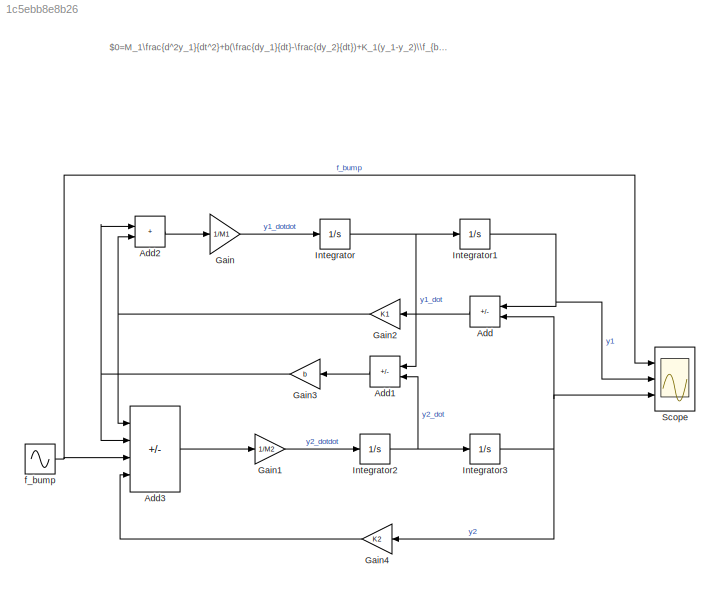
MODEL slx_1c5ebb8e8b26
KIND model
CONFIG AbsTol = auto
CONFIG EnableMultiTasking = off
CONFIG FixedStep = auto
CONFIG MaxStep = auto
CONFIG MinStep = auto
CONFIG RelTol = 1e-3
CONFIG SampleTimeConstraint = Unconstrained
CONFIG SolverName = VariableStepAuto
CONFIG StartTime = 0.0
CONFIG StopTime = 100
WORKSPACE source: mxarray member
WORKSPACE K1: Simulink.Parameter (value not decoded)
WORKSPACE K2: Simulink.Parameter (value not decoded)
WORKSPACE M1: Simulink.Parameter (value not decoded)
WORKSPACE M2: Simulink.Parameter (value not decoded)
WORKSPACE b: Simulink.Parameter (value not decoded)
BLOCK [Sum] Add
  IconShape = rectangular
  Inputs = -+
  Ports = [2, 1]
BLOCK [Sum] Add1
  IconShape = rectangular
  Inputs = -+
  NameLocation = top
  Ports = [2, 1]
BLOCK [Sum] Add2
  IconShape = rectangular
  Ports = [2, 1]
BLOCK [Sum] Add3
  IconShape = rectangular
  Inputs = --+-
  Ports = [4, 1]
BLOCK [Gain] Gain
  Gain = 1/M1
BLOCK [Gain] Gain1
  Gain = 1/M2
BLOCK [Gain] Gain2
  Gain = K1
  NameLocation = top
BLOCK [Gain] Gain3
  Gain = b
  NameLocation = top
BLOCK [Gain] Gain4
  Gain = K2
  NameLocation = top
BLOCK [Integrator] Integrator
  Ports = [1, 1]
BLOCK [Integrator] Integrator1
  Ports = [1, 1]
BLOCK [Integrator] Integrator2
  Ports = [1, 1]
BLOCK [Integrator] Integrator3
  Ports = [1, 1]
BLOCK [Scope] Scope
  Floating = off
  NumInputPorts = 3
  Ports = [3]
  ScopeSpecificationString = Simulink.scopes.TimeScopeBlockCfg('CurrentConfiguration', extmgr.ConfigurationSet(extmgr.Configuration('Core','General UI',true),extmgr.Configuration('Core','Source UI',true),extmgr.Configuration('Sources','WiredSimulink',true),extmgr.Configuration('Visuals','Time Domain',true,'SerializedDisplays',{struct('MinYLimReal','-1.25','MaxYLimReal','1.25','YLabelReal','','MinYLimMag','0.00000','MaxYLimMag...<+2661ch>
BLOCK [Sin] f_bump
  Ports = [0, 1]
  SampleTime = 0
ANNOTATION (root): $0=M_1\frac{d^2y_1}{dt^2}+b(\frac{dy_1}{dt}-\frac{dy_2}{dt})+K_1(y_1-y_2)\\f_{bump}=M_2\frac{d^2y_2}{dt^2}+K_1(y_2-y_1)+K_2y_2+b(\frac{dy_2}{dt}-\frac{dy_1}{dt})$
LINE Add1:1 -> Gain3:1
LINE Add2:1 -> Gain:1
LINE Add3:1 -> Gain1:1
LINE Add:1 -> Gain2:1
LINE Gain1:1 -> Integrator2:1
NET Gain2:1 -> Add2:2, Add3:1
NET Gain3:1 -> Add2:1, Add3:2
LINE Gain4:1 -> Add3:4
LINE Gain:1 -> Integrator:1
NET Integrator1:1 -> Add:1, Scope:2
NET Integrator2:1 -> Add1:2, Integrator3:1
NET Integrator3:1 -> Add:2, Gain4:1, Scope:3
NET Integrator:1 -> Add1:1, Integrator1:1
NET f_bump:1 -> Add3:3, Scope:1
note: NET lines group one-source signal fan-out (src -> all destinations, sorted); 1:1 wires keep LINE
